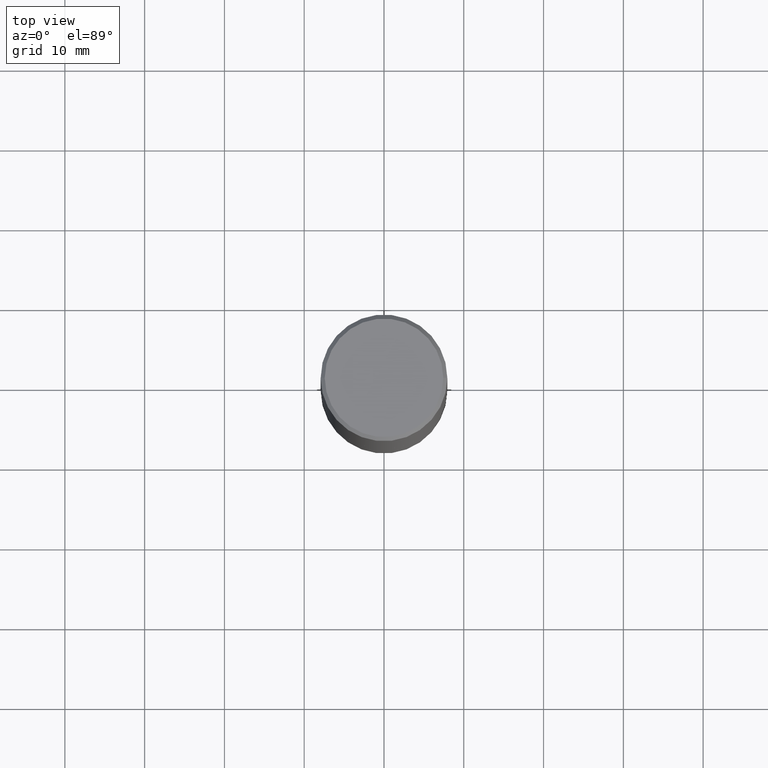
[diagram: clean part render]
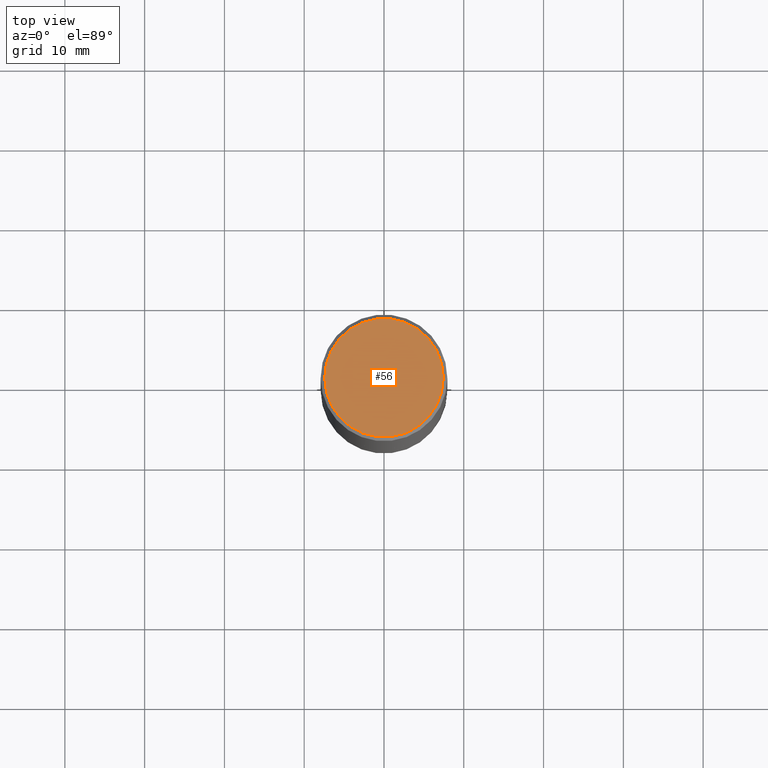
[diagram: same view with one face highlighted and labeled with its STEP entity id]
A machine part, top view. The second image highlights one B-rep face of the part: STEP entity #56.
In plain terms, the highlighted planar face has unit normal (0, -0, -1).
Its self-contained STEP definition (entity closure, byte-faithful):
#9 = EDGE_CURVE ( 'NONE', #65, #268, #13, .T. ) ;
#13 = CIRCLE ( 'NONE', #103, 0.2924999999999997602 ) ;
#15 = DIRECTION ( 'NONE',  ( -2.445468806185136597E-29, 3.491481338843145583E-15, 1.000000000000000000 ) ) ;
#17 = CARTESIAN_POINT ( 'NONE',  ( -1.043851414335219820E-46, 1.490343170380447200E-32, 4.268512490100411279E-18 ) ) ;
#44 = DIRECTION ( 'NONE',  ( -1.000000000000000000, 6.982962677686265922E-15, -4.876176775795935793E-29 ) ) ;
#56 = ADVANCED_FACE ( 'NONE', ( #68 ), #371, .F. ) ;
#59 = ORIENTED_EDGE ( 'NONE', *, *, #9, .T. ) ;
#65 = VERTEX_POINT ( 'NONE', #176 ) ;
#68 = FACE_OUTER_BOUND ( 'NONE', #271, .T. ) ;
#103 = AXIS2_PLACEMENT_3D ( 'NONE', #133, #204, #254 ) ;
#133 = CARTESIAN_POINT ( 'NONE',  ( -1.043851414335219820E-46, 1.490343170380447200E-32, 4.268512490100411279E-18 ) ) ;
#167 = AXIS2_PLACEMENT_3D ( 'NONE', #337, #195, #44 ) ;
#176 = CARTESIAN_POINT ( 'NONE',  ( 0.2924999999999997602, -2.110215457714318353E-15, 4.268512490114932791E-18 ) ) ;
#195 = DIRECTION ( 'NONE',  ( 2.438088387897960049E-29, -3.491481338843145188E-15, -1.000000000000000000 ) ) ;
#204 = DIRECTION ( 'NONE',  ( -2.445468806185136597E-29, 3.491481338843145583E-15, 1.000000000000000000 ) ) ;
#252 = CARTESIAN_POINT ( 'NONE',  ( -0.2924999999999997602, 2.077431396611662611E-15, 4.268512490086005323E-18 ) ) ;
#254 = DIRECTION ( 'NONE',  ( 1.000000000000000000, -6.982962677686266711E-15, 4.876067333457693400E-29 ) ) ;
#265 = DIRECTION ( 'NONE',  ( 1.000000000000000000, -6.982962677686266711E-15, 4.876067333457693400E-29 ) ) ;
#268 = VERTEX_POINT ( 'NONE', #252 ) ;
#271 = EDGE_LOOP ( 'NONE', ( #278, #59 ) ) ;
#278 = ORIENTED_EDGE ( 'NONE', *, *, #377, .T. ) ;
#317 = CIRCLE ( 'NONE', #351, 0.2924999999999997602 ) ;
#337 = CARTESIAN_POINT ( 'NONE',  ( 2.042516583223231356E-15, 0.2924999999999997602, -1.019124035366569212E-15 ) ) ;
#351 = AXIS2_PLACEMENT_3D ( 'NONE', #17, #15, #265 ) ;
#371 = PLANE ( 'NONE',  #167 ) ;
#377 = EDGE_CURVE ( 'NONE', #268, #65, #317, .T. ) ;